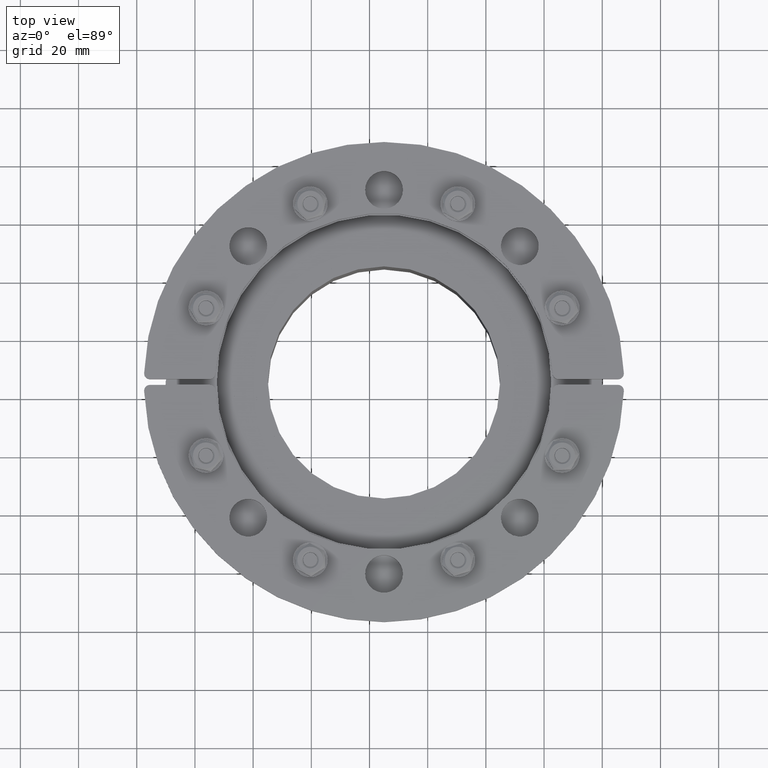
[diagram: clean part render]
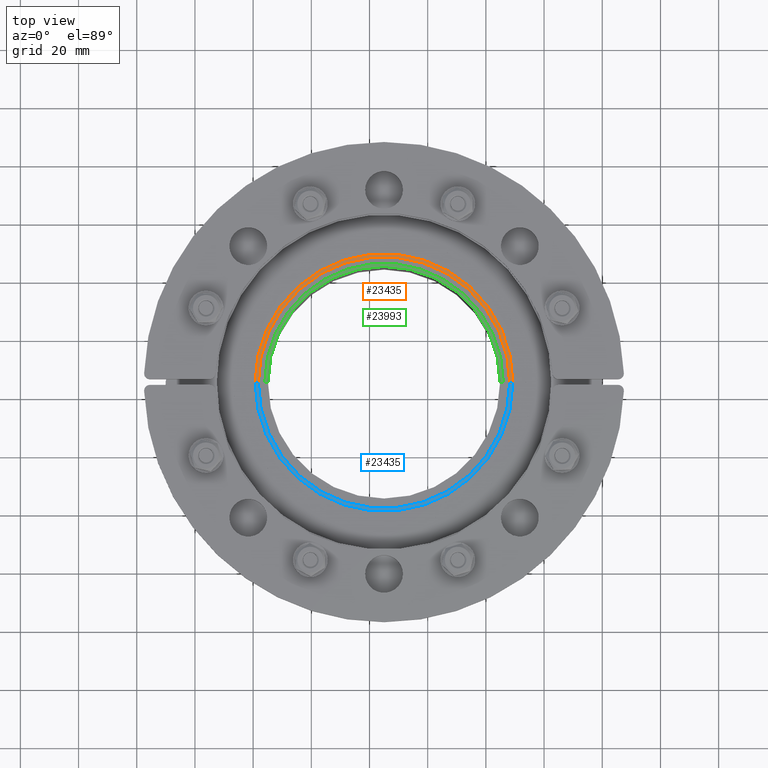
[diagram: same view with three faces highlighted in distinct colors, each labeled with its STEP entity id]
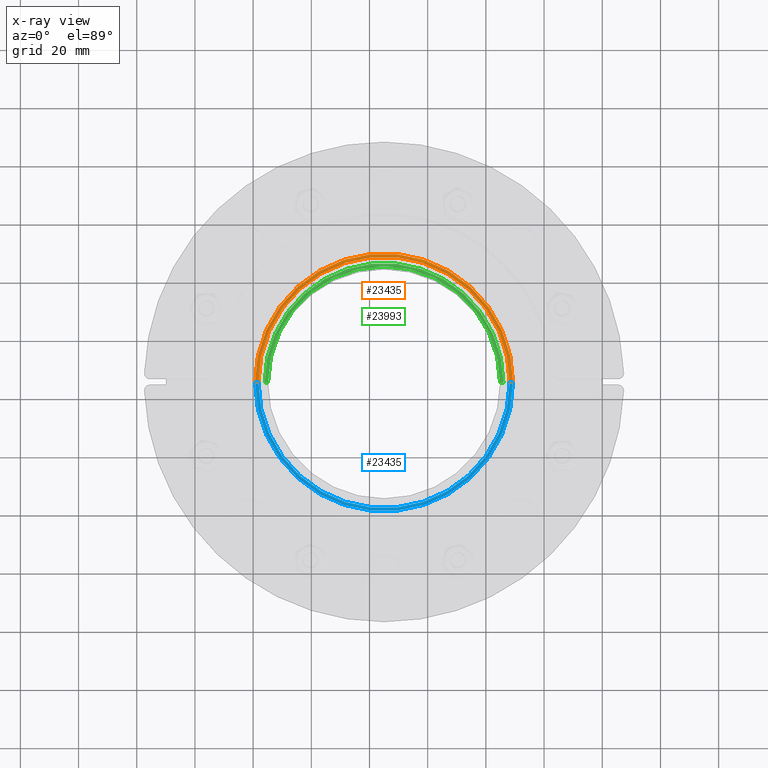
[diagram: x-ray of the same camera — body ghosted, the three highlighted faces saturated]
A machine part, top view with three faces highlighted in distinct colors.
The next image is the same camera in x-ray (body ghosted, the three faces saturated) — at least one of them is partly hidden behind the body in this view.
Their STEP definitions:

[orange] entity #23435 — the highlighted planar face has unit normal (0, 0, -1).
#23289=CARTESIAN_POINT('',(44.299999999999997,0.0,0.0));
#23290=VERTEX_POINT('',#23289);
#23291=CARTESIAN_POINT('',(-44.299999999999997,0.0,0.0));
#23292=VERTEX_POINT('',#23291);
#23293=CARTESIAN_POINT('',(0.0,0.0,0.0));
#23294=DIRECTION('',(0.0,0.0,1.0));
#23295=DIRECTION('',(1.0,0.0,0.0));
#23296=AXIS2_PLACEMENT_3D('',#23293,#23294,#23295);
#23297=CIRCLE('',#23296,44.299999999999997);
#23298=EDGE_CURVE('',#23290,#23292,#23297,.T.);
#23331=CARTESIAN_POINT('',(43.200000000000003,0.0,0.0));
#23332=VERTEX_POINT('',#23331);
#23333=CARTESIAN_POINT('',(43.200000000000003,0.0,0.0));
#23334=DIRECTION('',(1.0,0.0,0.0));
#23335=VECTOR('',#23334,1.099999999999994);
#23336=LINE('',#23333,#23335);
#23337=EDGE_CURVE('',#23332,#23290,#23336,.T.);
#23362=CARTESIAN_POINT('',(-43.200000000000003,0.0,0.0));
#23363=VERTEX_POINT('',#23362);
#23364=CARTESIAN_POINT('',(0.0,0.0,0.0));
#23365=DIRECTION('',(0.0,0.0,-1.0));
#23366=DIRECTION('',(-1.0,0.0,0.0));
#23367=AXIS2_PLACEMENT_3D('',#23364,#23365,#23366);
#23368=CIRCLE('',#23367,43.200000000000003);
#23369=EDGE_CURVE('',#23363,#23332,#23368,.T.);
#23395=CARTESIAN_POINT('',(-44.299999999999997,0.0,0.0));
#23396=DIRECTION('',(1.0,0.0,0.0));
#23397=VECTOR('',#23396,1.099999999999994);
#23398=LINE('',#23395,#23397);
#23399=EDGE_CURVE('',#23292,#23363,#23398,.T.);
#23424=CARTESIAN_POINT('',(3.431865E-016,27.562628193698423,0.0));
#23425=DIRECTION('',(0.0,0.0,1.0));
#23426=DIRECTION('',(1.0,0.0,0.0));
#23427=AXIS2_PLACEMENT_3D('',#23424,#23425,#23426);
#23428=PLANE('',#23427);
#23429=ORIENTED_EDGE('',*,*,#23399,.F.);
#23430=ORIENTED_EDGE('',*,*,#23298,.F.);
#23431=ORIENTED_EDGE('',*,*,#23337,.F.);
#23432=ORIENTED_EDGE('',*,*,#23369,.F.);
#23433=EDGE_LOOP('',(#23429,#23430,#23431,#23432));
#23434=FACE_OUTER_BOUND('',#23433,.T.);
#23435=ADVANCED_FACE('',(#23434),#23428,.F.);

[blue] entity #23435 — the highlighted planar face has unit normal (-0, 0, -1).
#23289=CARTESIAN_POINT('',(44.299999999999997,0.0,0.0));
#23290=VERTEX_POINT('',#23289);
#23291=CARTESIAN_POINT('',(-44.299999999999997,0.0,0.0));
#23292=VERTEX_POINT('',#23291);
#23293=CARTESIAN_POINT('',(0.0,0.0,0.0));
#23294=DIRECTION('',(0.0,0.0,1.0));
#23295=DIRECTION('',(1.0,0.0,0.0));
#23296=AXIS2_PLACEMENT_3D('',#23293,#23294,#23295);
#23297=CIRCLE('',#23296,44.299999999999997);
#23298=EDGE_CURVE('',#23290,#23292,#23297,.T.);
#23331=CARTESIAN_POINT('',(43.200000000000003,0.0,0.0));
#23332=VERTEX_POINT('',#23331);
#23333=CARTESIAN_POINT('',(43.200000000000003,0.0,0.0));
#23334=DIRECTION('',(1.0,0.0,0.0));
#23335=VECTOR('',#23334,1.099999999999994);
#23336=LINE('',#23333,#23335);
#23337=EDGE_CURVE('',#23332,#23290,#23336,.T.);
#23362=CARTESIAN_POINT('',(-43.200000000000003,0.0,0.0));
#23363=VERTEX_POINT('',#23362);
#23364=CARTESIAN_POINT('',(0.0,0.0,0.0));
#23365=DIRECTION('',(0.0,0.0,-1.0));
#23366=DIRECTION('',(-1.0,0.0,0.0));
#23367=AXIS2_PLACEMENT_3D('',#23364,#23365,#23366);
#23368=CIRCLE('',#23367,43.200000000000003);
#23369=EDGE_CURVE('',#23363,#23332,#23368,.T.);
#23395=CARTESIAN_POINT('',(-44.299999999999997,0.0,0.0));
#23396=DIRECTION('',(1.0,0.0,0.0));
#23397=VECTOR('',#23396,1.099999999999994);
#23398=LINE('',#23395,#23397);
#23399=EDGE_CURVE('',#23292,#23363,#23398,.T.);
#23424=CARTESIAN_POINT('',(3.431865E-016,27.562628193698423,0.0));
#23425=DIRECTION('',(0.0,0.0,1.0));
#23426=DIRECTION('',(1.0,0.0,0.0));
#23427=AXIS2_PLACEMENT_3D('',#23424,#23425,#23426);
#23428=PLANE('',#23427);
#23429=ORIENTED_EDGE('',*,*,#23399,.F.);
#23430=ORIENTED_EDGE('',*,*,#23298,.F.);
#23431=ORIENTED_EDGE('',*,*,#23337,.F.);
#23432=ORIENTED_EDGE('',*,*,#23369,.F.);
#23433=EDGE_LOOP('',(#23429,#23430,#23431,#23432));
#23434=FACE_OUTER_BOUND('',#23433,.T.);
#23435=ADVANCED_FACE('',(#23434),#23428,.F.);

[green] entity #23993 — the highlighted planar face has unit normal (0, 0, -1).
#23847=CARTESIAN_POINT('',(-41.0,0.0,0.0));
#23848=VERTEX_POINT('',#23847);
#23849=CARTESIAN_POINT('',(-39.899999999999999,0.0,0.0));
#23850=VERTEX_POINT('',#23849);
#23851=CARTESIAN_POINT('',(-41.0,0.0,0.0));
#23852=DIRECTION('',(1.0,0.0,0.0));
#23853=VECTOR('',#23852,1.100000000000001);
#23854=LINE('',#23851,#23853);
#23855=EDGE_CURVE('',#23848,#23850,#23854,.T.);
#23887=CARTESIAN_POINT('',(41.0,0.0,0.0));
#23888=VERTEX_POINT('',#23887);
#23889=CARTESIAN_POINT('',(0.0,0.0,0.0));
#23890=DIRECTION('',(0.0,0.0,1.0));
#23891=DIRECTION('',(1.0,0.0,0.0));
#23892=AXIS2_PLACEMENT_3D('',#23889,#23890,#23891);
#23893=CIRCLE('',#23892,41.0);
#23894=EDGE_CURVE('',#23888,#23848,#23893,.T.);
#23920=CARTESIAN_POINT('',(39.899999999999999,0.0,0.0));
#23921=VERTEX_POINT('',#23920);
#23922=CARTESIAN_POINT('',(39.899999999999999,0.0,0.0));
#23923=DIRECTION('',(1.0,0.0,0.0));
#23924=VECTOR('',#23923,1.100000000000001);
#23925=LINE('',#23922,#23924);
#23926=EDGE_CURVE('',#23921,#23888,#23925,.T.);
#23951=CARTESIAN_POINT('',(0.0,0.0,0.0));
#23952=DIRECTION('',(0.0,0.0,-1.0));
#23953=DIRECTION('',(-1.0,0.0,0.0));
#23954=AXIS2_PLACEMENT_3D('',#23951,#23952,#23953);
#23955=CIRCLE('',#23954,39.899999999999999);
#23956=EDGE_CURVE('',#23850,#23921,#23955,.T.);
#23982=CARTESIAN_POINT('',(-6.477678E-016,25.462369868211894,0.0));
#23983=DIRECTION('',(0.0,0.0,1.0));
#23984=DIRECTION('',(1.0,0.0,0.0));
#23985=AXIS2_PLACEMENT_3D('',#23982,#23983,#23984);
#23986=PLANE('',#23985);
#23987=ORIENTED_EDGE('',*,*,#23956,.F.);
#23988=ORIENTED_EDGE('',*,*,#23855,.F.);
#23989=ORIENTED_EDGE('',*,*,#23894,.F.);
#23990=ORIENTED_EDGE('',*,*,#23926,.F.);
#23991=EDGE_LOOP('',(#23987,#23988,#23989,#23990));
#23992=FACE_OUTER_BOUND('',#23991,.T.);
#23993=ADVANCED_FACE('',(#23992),#23986,.F.);